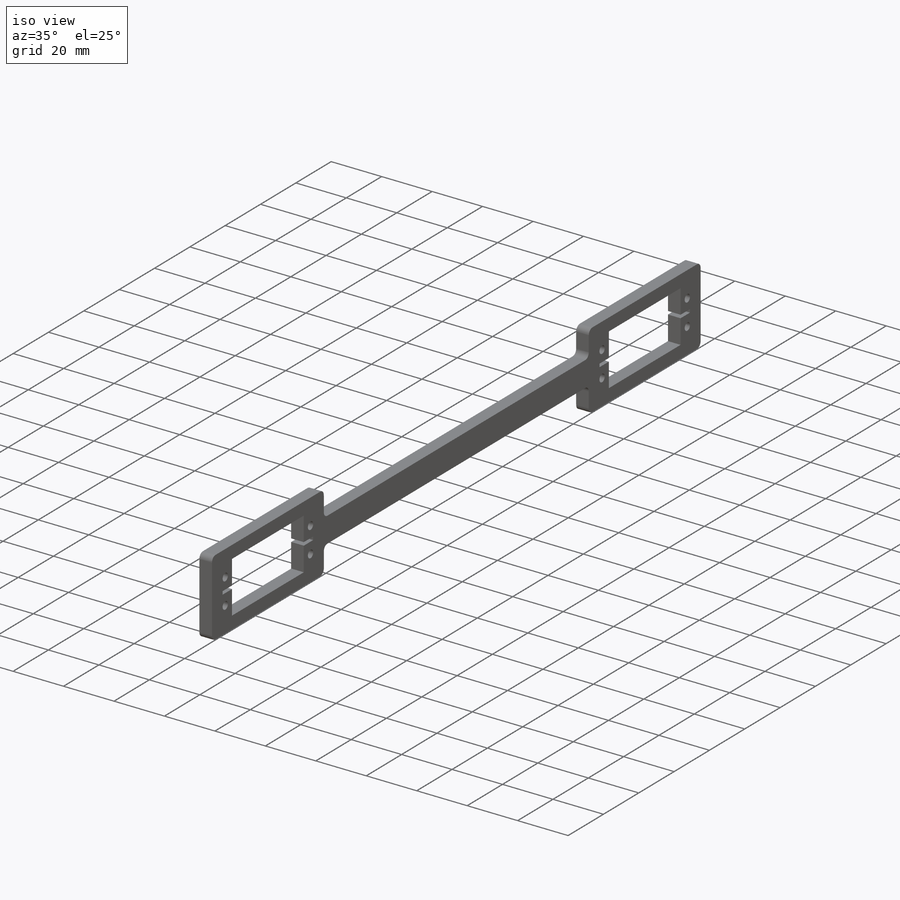
[diagram: iso view]
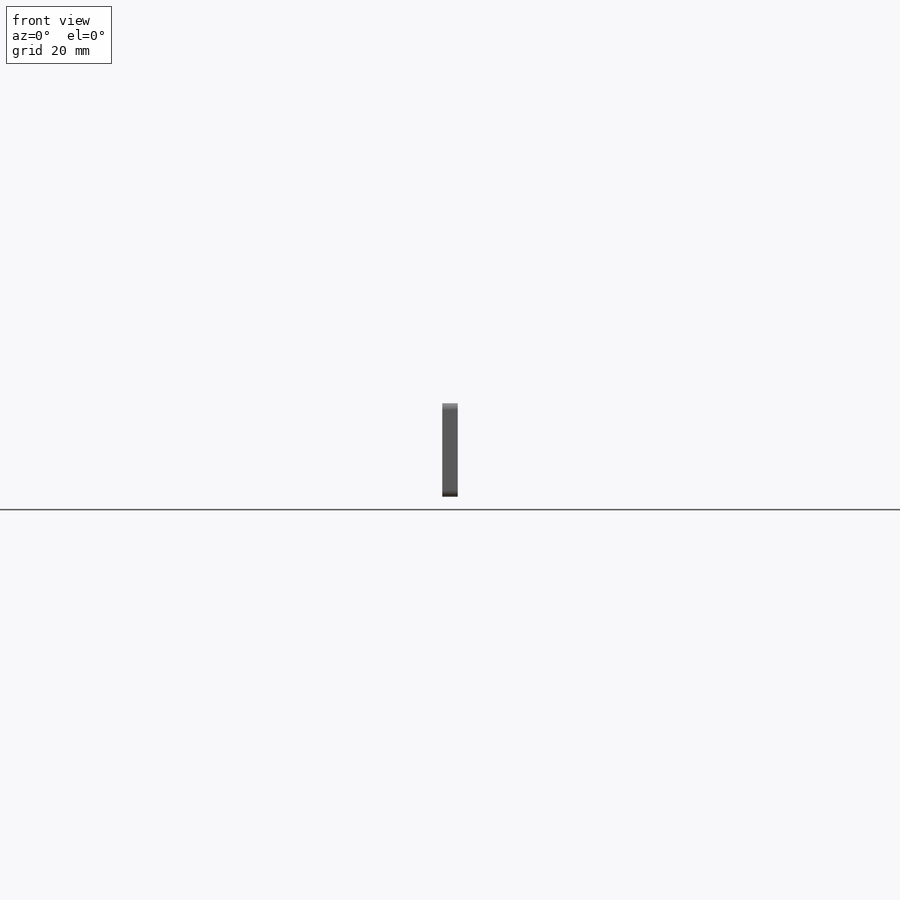
[diagram: front view]
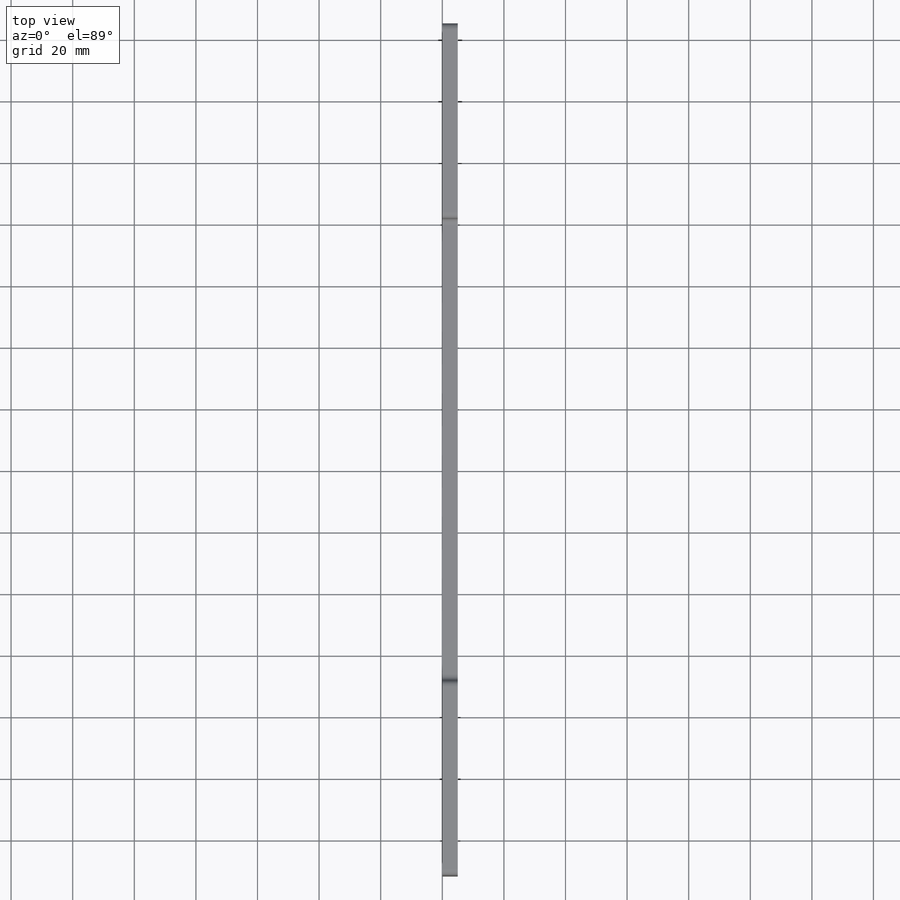
[diagram: top view]
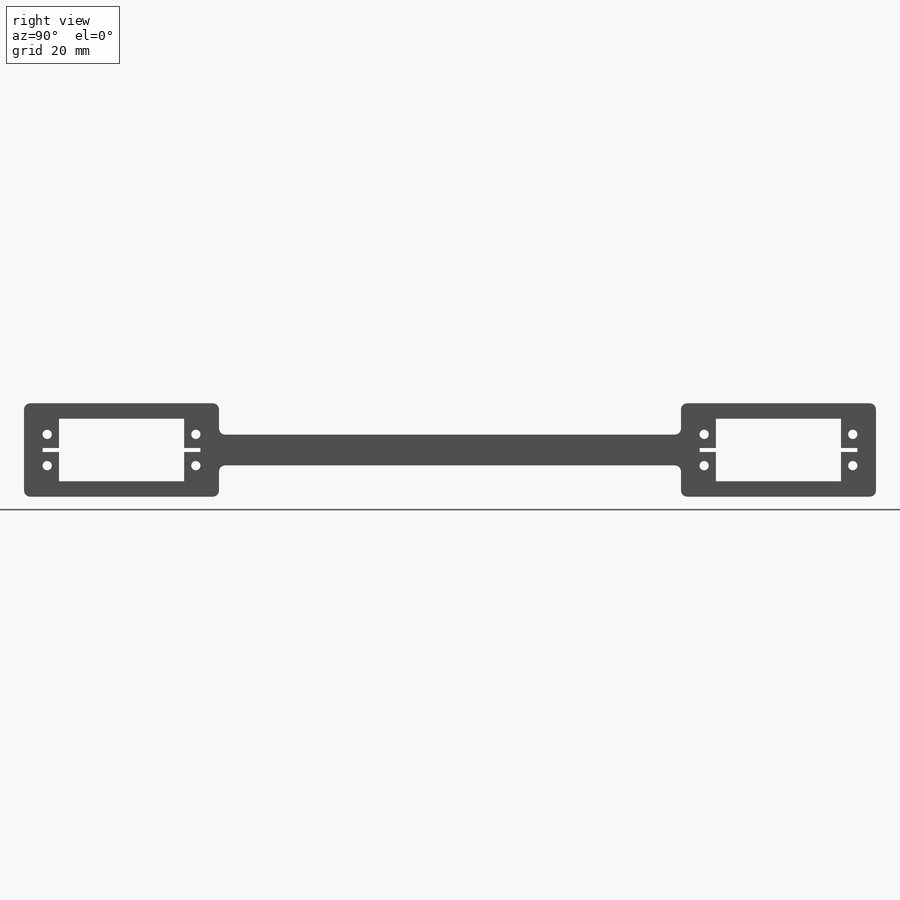
[diagram: right view]
SOLIDWORKS PART (.sldprt)
format: sldprt  version: not decoded by parser v0  size: 273,920 bytes
history: native  units: mm
features: sketch x4, cut_extrude x3, material x1, extrude x1, fillet x1 (+12 scaffold rows collapsed)
feature tree (22):
  scaffold x12  (default folders/planes/origin — collapsed)
  material  "Material <not specified>"
  sketch  "Sketch2"  dims[D1=63.3mm D2=30.32mm D3=150.0mm D4=10.0mm]
  extrude  "Boss-Extrude1"  Depth=5mm
  sketch  "Sketch1"  dims[c1.D3=3.0mm c1.D1=20.32mm c1.D2=40.64mm c1.D4=3.81mm c1.D5=4.87mm c1.D6=3.81mm c1.D7=4.87mm c2.D5=10.08mm c2.D7=10.08mm]
  cut_extrude  "Cut-Extrude7"  [1 undecoded]
  fillet  "Fillet1"  Radius=2mm
  sketch  "Sketch4"  dims[D1=1.27mm D2=5.3mm]
  cut_extrude  "Cut-Extrude8"  [1 undecoded]
  sketch  "Sketch5"  dims[D1=1.27mm D2=5.3mm]
  cut_extrude  "Cut-Extrude9"  [1 undecoded]
decode coverage: 6 of 9 modeling features carry decoded parameters
note: 3 parameter values undecoded
summary: no parameter record found for 3 features
note: suppression state not decoded; provenance and decode notes live in map.json
